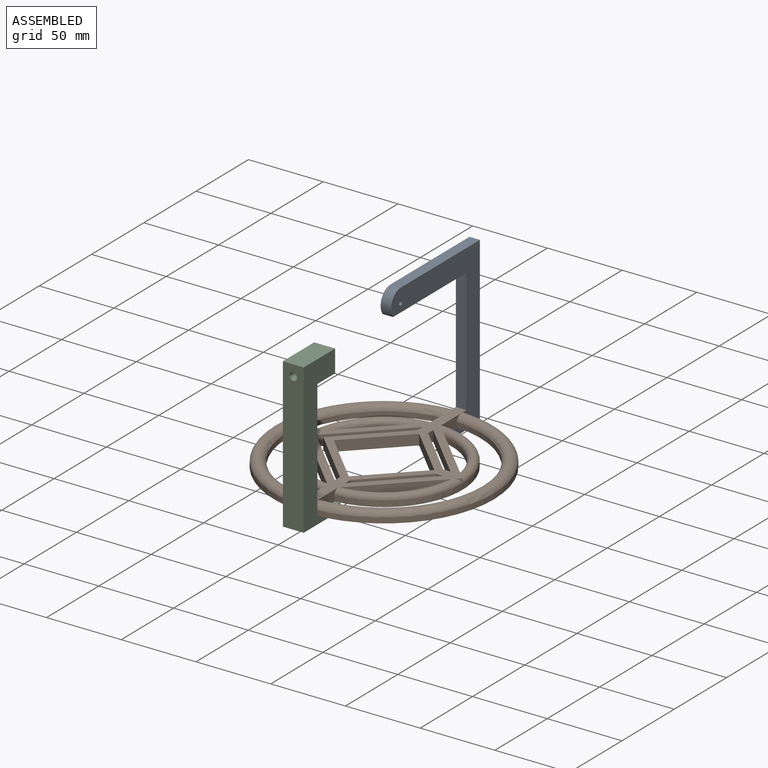
[diagram: assembled view]
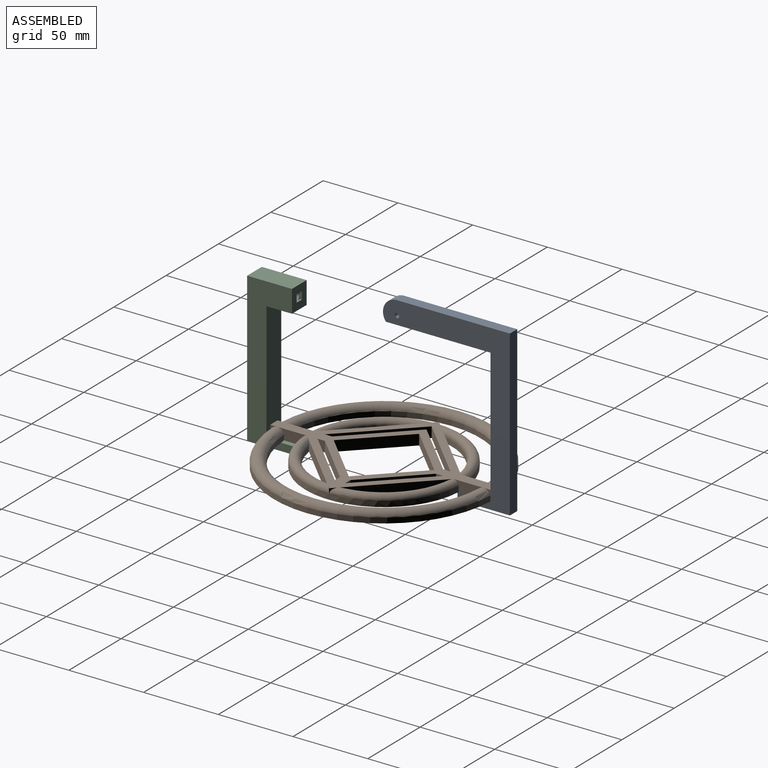
[diagram: assembled view, second angle]
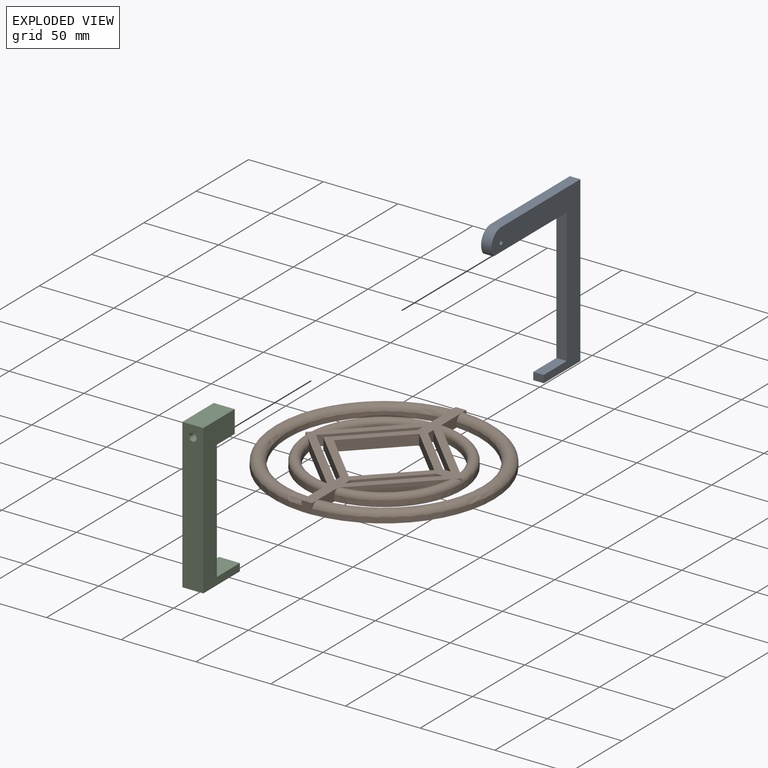
[diagram: exploded view]
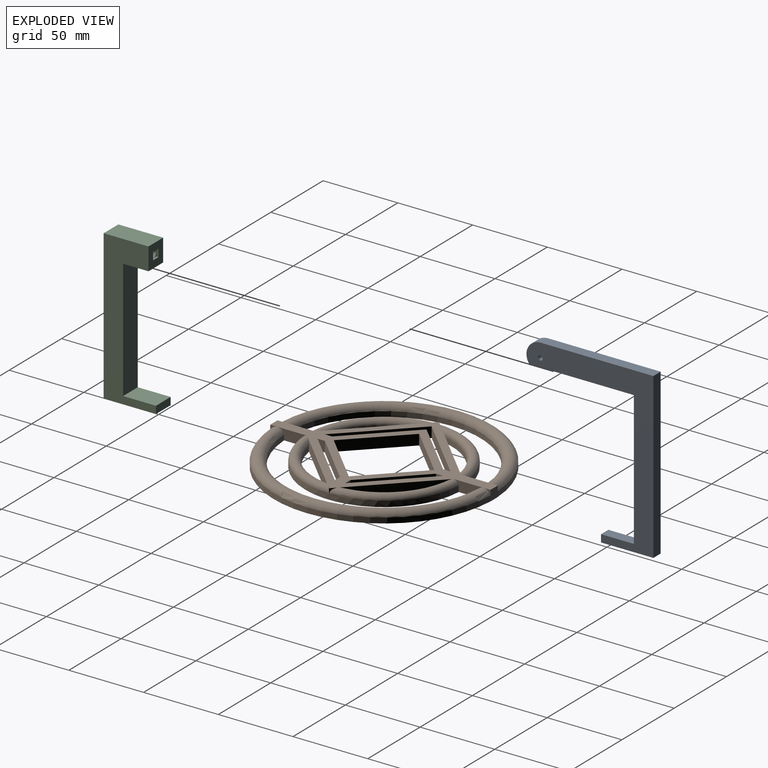
[diagram: exploded view, second angle]
ASSEMBLY  parts=3 mates=2
PART A: 11 faces, bbox 7x84.9x110 mm
  f0: plane 90x7mm, normal (0,-1,0), area 630mm2, adj f1,f7,f8,f9
  f1: plane 22.01x7mm, normal (0,0,1), area 154.1mm2, adj f0,f2,f8,f9
  f2: plane 7x5mm, normal (0,-1,0), area 35mm2, adj f1,f3,f8,f9
  f3: plane 35.01x7mm, normal (0,0,-1), area 245.1mm2, adj f2,f4,f8,f9
  f4: plane 110x7mm, normal (0,1,0), area 770mm2, adj f3,f5,f8,f9
  f5: plane 75.61x7mm, normal (0,0,1), area 529.2mm2, adj f4,f6,f8,f9
  f6: cylinder r=9.32mm len=15mm, axis (-1,0,0), area 145.2mm2, adj f5,f7,f8,f9
  f7: plane 70x7mm, normal (0,0,-1), area 490mm2, adj f0,f6,f8,f9
  f8: plane 110x84.93mm, normal (1,0,0), area 2589.8mm2, adj f0,f1,f2,f3,f4,f5,f6,f7
  f9: plane 110x84.93mm, normal (-1,0,0), area 2589.8mm2, adj f0,f1,f2,f3,f4,f5,f6,f7
  f10: cylinder r=1.5mm len=7mm, axis (-1,0,0), area 66mm2, adj f8,f9
PART B: 54 faces, bbox 160x159.8x7.1 mm
  f0: torus R=69.13mm, axis (0,0,1), area 2588.6mm2, adj f1,f2,f45,f49
  f1: cylinder r=64.58mm len=128.97mm, axis (0,0,1), area 685.6mm2, adj f0,f6,f45,f49
  f2: cylinder r=73.68mm len=147.19mm, axis (0,0,1), area 785.6mm2, adj f0,f6,f45,f49
  f3: cylinder r=52.5mm len=104.77mm, axis (0,0,1), area 552.7mm2, adj f6,f9,f15,f45,f49
  f4: torus R=69.13mm, axis (0,0,1), area 2588.6mm2, adj f5,f7,f44,f50
  f5: cylinder r=64.58mm len=128.97mm, axis (0,0,1), area 685.6mm2, adj f4,f6,f44,f50
  f6: plane 147.36x147.36mm, normal (0,0,-1), area 8583.8mm2, adj f1,f2,f3,f5,f7,f11,f12,f13
  f7: cylinder r=73.68mm len=147.19mm, axis (0,0,1), area 785.6mm2, adj f4,f6,f44,f50
  f8: torus R=49mm, axis (0,0,1), area 751.8mm2, adj f12,f14,f22,f23,f30,f50
  f9: torus R=49mm, axis (0,0,1), area 751.8mm2, adj f3,f11,f20,f21,f28,f45
  f10: torus R=49mm, axis (0,0,1), area 751.8mm2, adj f14,f16,f18,f19,f26,f44
  f11: cylinder r=45.5mm len=37.21mm, axis (0,0,1), area 196.4mm2, adj f6,f9,f28
  f12: cylinder r=45.5mm len=37.21mm, axis (0,0,1), area 196.4mm2, adj f6,f8,f30
  f13: cylinder r=45.5mm len=37.21mm, axis (0,0,1), area 196.4mm2, adj f6,f15,f32
  f14: cylinder r=52.5mm len=104.77mm, axis (0,0,1), area 552.7mm2, adj f6,f8,f10,f44,f50
  f15: torus R=49mm, axis (0,0,1), area 751.8mm2, adj f3,f13,f24,f25,f32,f49
  f16: cylinder r=45.5mm len=37.21mm, axis (0,0,1), area 196.4mm2, adj f6,f10,f26
  f17: plane 147.36x105mm, normal (0,0,1), area 2834.9mm2, adj f18,f19,f20,f21,f22,f23,f24,f25
  f18: plane 3.64x3.64mm, normal (-0.71,0.71,0), area 3.8mm2, adj f10,f17,f23
  f19: plane 0.14x0.14mm, normal (-0.71,0.71,0), area 0mm2, adj f10,f17,f44
  f20: plane 0.14x0.14mm, normal (0.71,0.71,0), area 0mm2, adj f9,f17,f45
  f21: plane 3.64x3.64mm, normal (0.71,0.71,0), area 3.8mm2, adj f9,f17,f24
  f22: plane 0.14x0.14mm, normal (-0.71,-0.71,0), area 0mm2, adj f8,f17,f50
  f23: plane 3.64x3.64mm, normal (-0.71,-0.71,0), area 3.8mm2, adj f8,f17,f18
  f24: plane 3.64x3.64mm, normal (0.71,-0.71,0), area 3.8mm2, adj f15,f17,f21
  f25: plane 0.14x0.14mm, normal (0.71,-0.71,0), area 0mm2, adj f15,f17,f49
  f26: plane 45.24x45.24mm, normal (-0.71,0.71,0), area 377.1mm2, adj f6,f10,f16,f17
  f27: plane 42x42mm, normal (0.71,-0.71,0), area 415.8mm2, adj f6,f17,f31,f34
  f28: plane 45.24x45.24mm, normal (0.71,0.71,0), area 377.1mm2, adj f6,f9,f11,f17
  f29: plane 38.5x38.5mm, normal (-0.71,-0.71,0), area 381.1mm2, adj f6,f17,f35,f52
  f30: plane 45.24x45.24mm, normal (-0.71,-0.71,0), area 377.1mm2, adj f6,f8,f12,f17
  f31: plane 42x42mm, normal (0.71,0.71,0), area 415.8mm2, adj f6,f17,f27,f48
  f32: plane 45.24x45.24mm, normal (0.71,-0.71,0), area 377.1mm2, adj f6,f13,f15,f17
  f33: plane 38.5x38.5mm, normal (-0.71,0.71,0), area 381.1mm2, adj f6,f17,f47,f53
  f34: plane 7x4.88mm, normal (-1,0,0), area 34.1mm2, adj f6,f17,f27,f43
  f35: plane 7x4.88mm, normal (1,0,0), area 34.1mm2, adj f6,f17,f29,f41
  f36: plane 33.62x33.62mm, normal (-0.71,0.71,0), area 332.9mm2, adj f6,f17,f38,f40
  f37: plane 33.62x33.62mm, normal (0.71,-0.71,0), area 332.9mm2, adj f6,f17,f47,f53
  f38: plane 33.62x33.62mm, normal (0.71,0.71,0), area 332.9mm2, adj f6,f17,f36,f42
  f39: plane 37.12x37.12mm, normal (-0.71,-0.71,0), area 367.5mm2, adj f6,f17,f43,f48
  f40: plane 33.62x33.62mm, normal (-0.71,-0.71,0), area 332.9mm2, adj f6,f17,f36,f42
  f41: plane 33.62x33.62mm, normal (0.71,0.71,0), area 332.9mm2, adj f6,f17,f35,f52
  f42: plane 33.62x33.62mm, normal (0.71,-0.71,0), area 332.9mm2, adj f6,f17,f38,f40
  f43: plane 37.12x37.12mm, normal (-0.71,0.71,0), area 367.5mm2, adj f6,f17,f34,f39
  f44: plane 24.79x7.11mm, normal (-1,0,0), area 96.4mm2, adj f4,f5,f6,f7,f10,f14,f17,f19
  f45: plane 24.79x7.11mm, normal (1,0,0), area 96.4mm2, adj f0,f1,f2,f3,f6,f9,f17,f20
  f46: plane 7x7mm, normal (0,1,0), area 49mm2, adj f6,f17,f44,f45
  f47: plane 7x4.88mm, normal (1,0,0), area 34.1mm2, adj f6,f17,f33,f37
  f48: plane 7x4.88mm, normal (-1,0,0), area 34.1mm2, adj f6,f17,f31,f39
  f49: plane 24.79x7.11mm, normal (1,0,0), area 96.4mm2, adj f0,f1,f2,f3,f6,f15,f17,f25
  f50: plane 24.79x7.11mm, normal (-1,0,0), area 96.4mm2, adj f4,f5,f6,f7,f8,f14,f17,f22
  f51: plane 7x7mm, normal (0,-1,0), area 49mm2, adj f6,f17,f49,f50
  f52: plane 7x4.88mm, normal (0,1,0), area 34.1mm2, adj f6,f17,f29,f41
  f53: plane 7x4.88mm, normal (0,-1,0), area 34.1mm2, adj f6,f17,f33,f37
PART C: 16 faces, bbox 35x100x14 mm
  f0: plane 15x14mm, normal (-1,0,0), area 184mm2, adj f1,f7,f8,f9,f10,f11,f12,f13
  f1: plane 17x14mm, normal (0,-1,0), area 238mm2, adj f0,f2,f8,f9
  f2: plane 80x14mm, normal (-1,0,0), area 1120mm2, adj f1,f3,f8,f9
  f3: plane 22x14mm, normal (0,1,0), area 308mm2, adj f2,f4,f8,f9
  f4: plane 14x5mm, normal (-1,0,0), area 70mm2, adj f3,f5,f8,f9
  f5: plane 35x14mm, normal (0,-1,0), area 490mm2, adj f4,f6,f8,f9
  f6: plane 100x14mm, normal (1,0,0), area 1380.4mm2, adj f5,f7,f8,f9,f15
  f7: plane 30x14mm, normal (0,1,0), area 420mm2, adj f0,f6,f8,f9
  f8: plane 100x35mm, normal (0,0,1), area 1665mm2, adj f0,f1,f2,f3,f4,f5,f6,f7
  f9: plane 100x35mm, normal (0,0,-1), area 1665mm2, adj f0,f1,f2,f3,f4,f5,f6,f7
  f10: plane 5.1x1.5mm, normal (0,0,1), area 7.7mm2, adj f0,f11,f13,f14
  f11: plane 5.1x1.5mm, normal (0,1,0), area 7.7mm2, adj f0,f10,f12,f14
  f12: plane 5.1x1.5mm, normal (0,0,-1), area 7.7mm2, adj f0,f11,f13,f14
  f13: plane 5.1x1.5mm, normal (0,-1,0), area 7.7mm2, adj f0,f10,f12,f14
  f14: plane 5.1x5.1mm, normal (-1,0,0), area 6.4mm2, adj f10,f11,f12,f13,f15
  f15: cylinder r=2.5mm len=28.5mm, axis (1,0,0), area 447.7mm2, adj f6,f14
PLACE A t=(-3.38,100.19,-8.54)mm
PLACE B t=(0.12,0.91,-0.04)mm
PLACE C rot(axis=(0.58,-0.58,-0.58),120deg) t=(7.12,-93.36,61.46)mm
MATE fastened A.f0 <-> B.f46  axis (0,-1,0) through (0.12,74.59,-3.54)mm
MATE fastened C.f2 <-> B.f51  axis (0,1,0) through (0.12,-72.77,-3.54)mm
